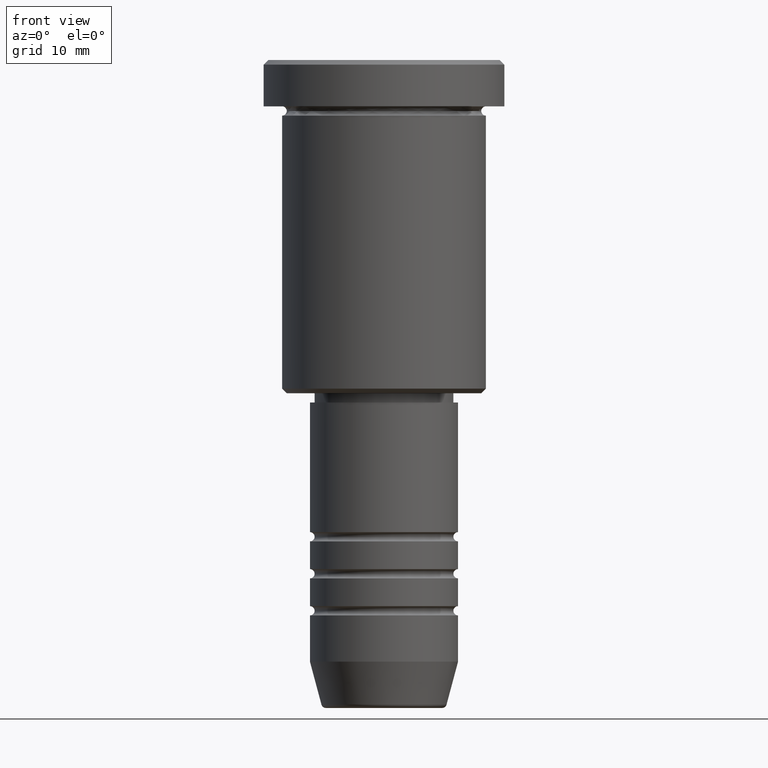
[diagram: clean part render]
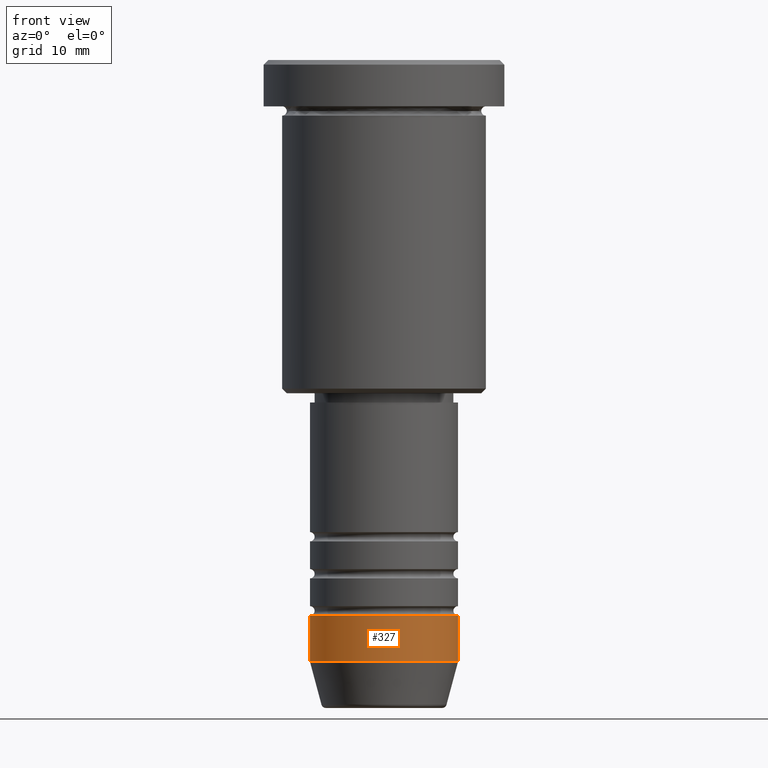
[diagram: same view with one face highlighted and labeled with its STEP entity id]
A machine part, front view. The second image highlights one B-rep face of the part: STEP entity #327.
In plain terms, the highlighted cylindrical surface (partial cylindrical patch) has radius 8 mm, axis along (-0, -0, 1).
Its self-contained STEP definition (entity closure, byte-faithful):
#46 = VERTEX_POINT ( 'NONE', #621 ) ;
#56 = ORIENTED_EDGE ( 'NONE', *, *, #595, .F. ) ;
#101 = DIRECTION ( 'NONE',  ( -0.000000000000000000, -0.000000000000000000, 1.000000000000000000 ) ) ;
#135 = CIRCLE ( 'NONE', #173, 8.000000000000000000 ) ;
#142 = DIRECTION ( 'NONE',  ( -0.000000000000000000, -0.000000000000000000, 1.000000000000000000 ) ) ;
#144 = ORIENTED_EDGE ( 'NONE', *, *, #1021, .F. ) ;
#145 = LINE ( 'NONE', #873, #984 ) ;
#154 = DIRECTION ( 'NONE',  ( 1.000000000000000000, 0.000000000000000000, 0.000000000000000000 ) ) ;
#173 = AXIS2_PLACEMENT_3D ( 'NONE', #234, #101, #1100 ) ;
#234 = CARTESIAN_POINT ( 'NONE',  ( 0.000000000000000000, 0.000000000000000000, -65.00000000000000000 ) ) ;
#239 = EDGE_CURVE ( 'NONE', #642, #1043, #135, .T. ) ;
#252 = VECTOR ( 'NONE', #345, 1000.000000000000000 ) ;
#260 = LINE ( 'NONE', #549, #252 ) ;
#316 = CARTESIAN_POINT ( 'NONE',  ( 0.000000000000000000, 0.000000000000000000, 0.000000000000000000 ) ) ;
#327 = ADVANCED_FACE ( 'NONE', ( #1049 ), #1142, .T. ) ;
#339 = DIRECTION ( 'NONE',  ( -0.000000000000000000, -0.000000000000000000, 1.000000000000000000 ) ) ;
#345 = DIRECTION ( 'NONE',  ( -0.000000000000000000, -0.000000000000000000, 1.000000000000000000 ) ) ;
#389 = CIRCLE ( 'NONE', #517, 8.000000000000000000 ) ;
#458 = CARTESIAN_POINT ( 'NONE',  ( 8.000000000000000000, 0.000000000000000000, -65.00000000000000000 ) ) ;
#484 = ORIENTED_EDGE ( 'NONE', *, *, #239, .T. ) ;
#513 = DIRECTION ( 'NONE',  ( -0.000000000000000000, -0.000000000000000000, 1.000000000000000000 ) ) ;
#517 = AXIS2_PLACEMENT_3D ( 'NONE', #1103, #339, #706 ) ;
#519 = EDGE_LOOP ( 'NONE', ( #144, #484, #788, #56 ) ) ;
#549 = CARTESIAN_POINT ( 'NONE',  ( 8.000000000000000000, 0.000000000000000000, 0.000000000000000000 ) ) ;
#595 = EDGE_CURVE ( 'NONE', #871, #46, #389, .T. ) ;
#621 = CARTESIAN_POINT ( 'NONE',  ( 8.000000000000000000, 0.000000000000000000, -60.00000000000000711 ) ) ;
#642 = VERTEX_POINT ( 'NONE', #729 ) ;
#706 = DIRECTION ( 'NONE',  ( 1.000000000000000000, 0.000000000000000000, 0.000000000000000000 ) ) ;
#729 = CARTESIAN_POINT ( 'NONE',  ( -8.000000000000000000, 9.797174393178825657E-16, -65.00000000000000000 ) ) ;
#788 = ORIENTED_EDGE ( 'NONE', *, *, #1106, .T. ) ;
#857 = CARTESIAN_POINT ( 'NONE',  ( -8.000000000000000000, 9.797174393178825657E-16, -60.00000000000000711 ) ) ;
#871 = VERTEX_POINT ( 'NONE', #857 ) ;
#873 = CARTESIAN_POINT ( 'NONE',  ( -8.000000000000000000, 9.797174393178825657E-16, 0.000000000000000000 ) ) ;
#984 = VECTOR ( 'NONE', #513, 1000.000000000000000 ) ;
#1021 = EDGE_CURVE ( 'NONE', #642, #871, #145, .T. ) ;
#1043 = VERTEX_POINT ( 'NONE', #458 ) ;
#1049 = FACE_OUTER_BOUND ( 'NONE', #519, .T. ) ;
#1100 = DIRECTION ( 'NONE',  ( 1.000000000000000000, 0.000000000000000000, 0.000000000000000000 ) ) ;
#1103 = CARTESIAN_POINT ( 'NONE',  ( 0.000000000000000000, 0.000000000000000000, -60.00000000000000711 ) ) ;
#1106 = EDGE_CURVE ( 'NONE', #1043, #46, #260, .T. ) ;
#1113 = AXIS2_PLACEMENT_3D ( 'NONE', #316, #142, #154 ) ;
#1142 = CYLINDRICAL_SURFACE ( 'NONE', #1113, 8.000000000000000000 ) ;